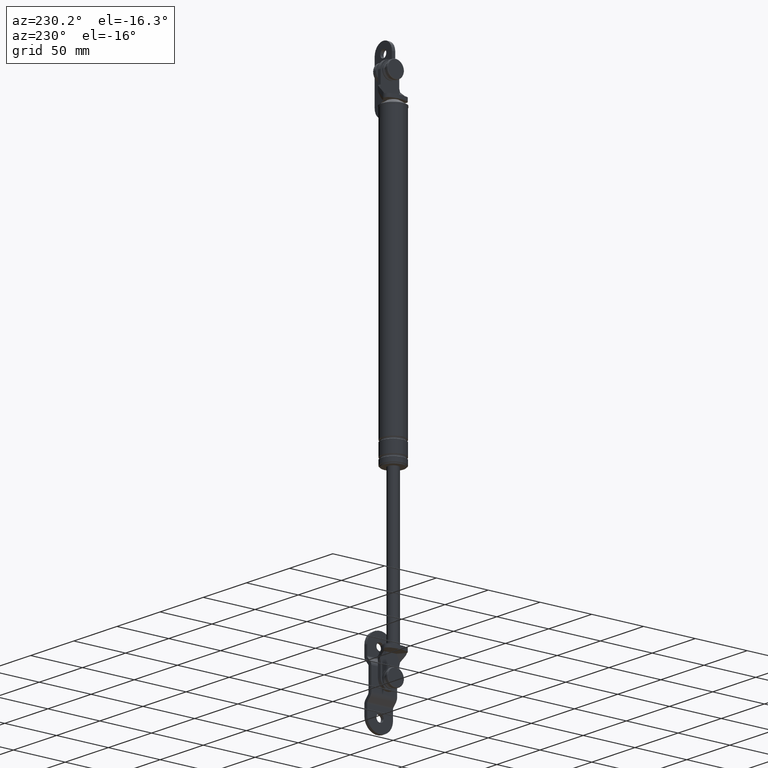
[diagram: clean part render]
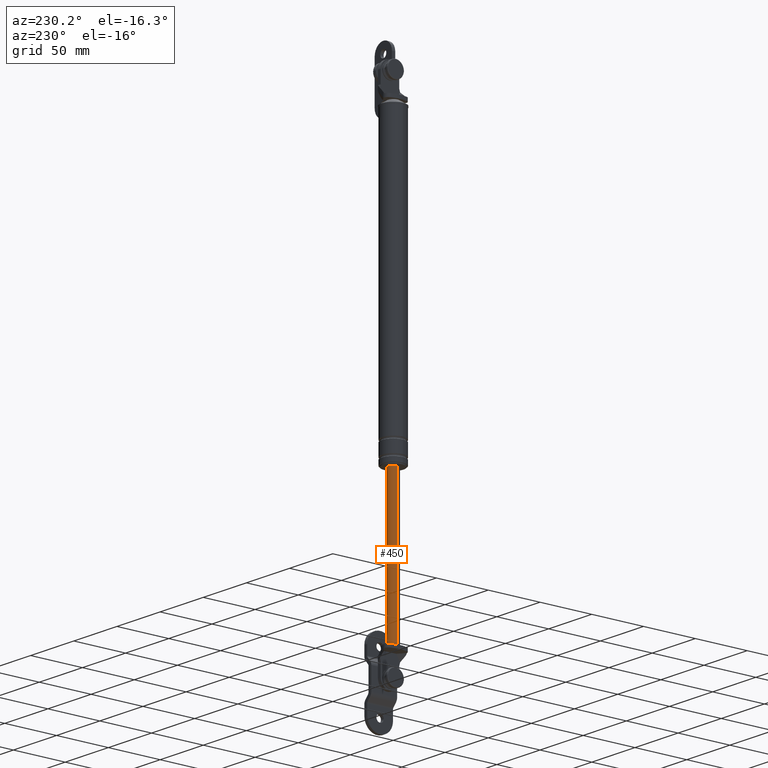
[diagram: same view with one face highlighted and labeled with its STEP entity id]
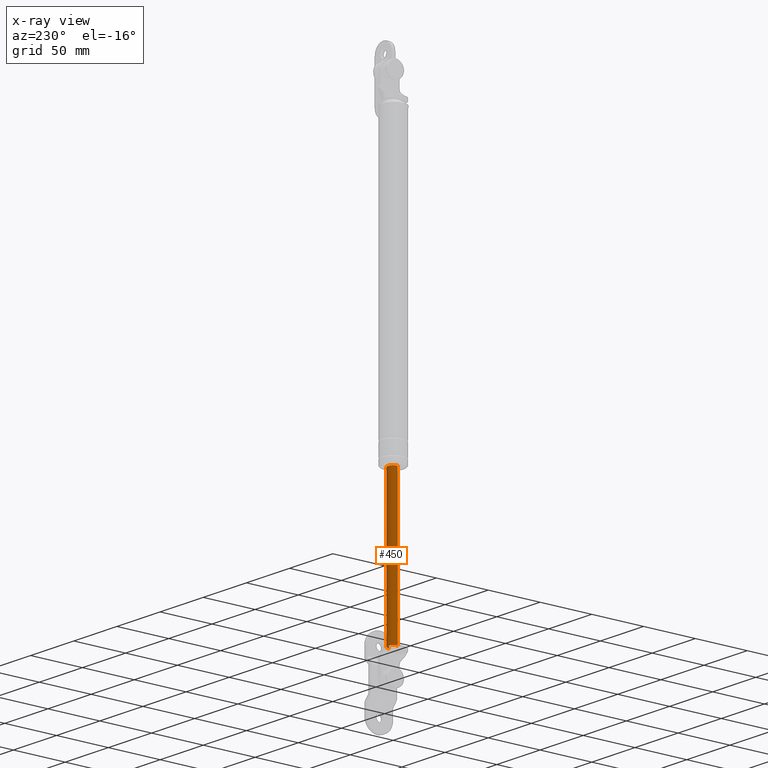
[diagram: x-ray of the same camera — body ghosted, the highlighted face saturated]
A machine part, auxiliary view. The second image highlights one B-rep face of the part: STEP entity #450.
The next image is the same camera in x-ray: the body ghosted, the highlighted face saturated — about 0% of this face is hidden behind the body in this view.
In plain terms, the highlighted cylindrical surface (edge-blend (fillet) strip) has radius 5 mm, axis along (0, 0, 1).
Its self-contained STEP definition (entity closure, byte-faithful):
#450=ADVANCED_FACE('',(#2196),#2195,.T.);
#2195=CYLINDRICAL_SURFACE('',#3422,5.00000002618E+000);
#2196=FACE_OUTER_BOUND('',#3423,.T.);
#3419=CARTESIAN_POINT('',(0.00000000000E+000,-2.61800128243E-008,0.00000000000E+000));
#3420=DIRECTION('',(-0.00000000000E+000,-0.00000000000E+000,1.00000000000E+000));
#3421=DIRECTION('',(-1.00000000000E+000,5.23598998637E-009,0.00000000000E+000));
#3422=AXIS2_PLACEMENT_3D('',#3419,#3420,#3421);
#3423=EDGE_LOOP('',(#4281,#4282,#4283,#4284,#4285));
#4281=ORIENTED_EDGE('',*,*,#4701,.F.);
#4282=ORIENTED_EDGE('',*,*,#4712,.F.);
#4283=ORIENTED_EDGE('',*,*,#4715,.T.);
#4284=ORIENTED_EDGE('',*,*,#4698,.F.);
#4285=ORIENTED_EDGE('',*,*,#4716,.F.);
#4698=EDGE_CURVE('',#7458,#7459,#7460,.T.);
#4701=EDGE_CURVE('',#7218,#7479,#7480,.T.);
#4712=EDGE_CURVE('',#7542,#7218,#7549,.T.);
#4715=EDGE_CURVE('',#7542,#7459,#7567,.T.);
#4716=EDGE_CURVE('',#7479,#7458,#7573,.T.);
#7218=VERTEX_POINT('',#9119);
#7458=VERTEX_POINT('',#9257);
#7459=VERTEX_POINT('',#9258);
#7460=CIRCLE('',#9262,5.00000002618E+000);
#7479=VERTEX_POINT('',#9271);
#7480=CIRCLE('',#9275,5.00000007854E+000);
#7542=VERTEX_POINT('',#9309);
#7549=CIRCLE('',#9317,5.00000007854E+000);
#7567=(BOUNDED_CURVE() B_SPLINE_CURVE(1,(#9322,#9323),.UNSPECIFIED.,.F.,.F.) B_SPLINE_CURVE_WITH_KNOTS((2,2),(6.28930816424E-002,9.37106918113E-001),.UNSPECIFIED.) CURVE() GEOMETRIC_REPRESENTATION_ITEM() RATIONAL_B_SPLINE_CURVE((1.00000000000E+000,1.00000000000E+000)) REPRESENTATION_ITEM('') );
#7573=(BOUNDED_CURVE() B_SPLINE_CURVE(1,(#9324,#9325),.UNSPECIFIED.,.F.,.F.) B_SPLINE_CURVE_WITH_KNOTS((2,2),(6.28930817610E-002,9.37106918239E-001),.UNSPECIFIED.) CURVE() GEOMETRIC_REPRESENTATION_ITEM() RATIONAL_B_SPLINE_CURVE((7.50000000000E-001,7.50000000000E-001)) REPRESENTATION_ITEM('') );
#9119=CARTESIAN_POINT('',(2.00000000000E+000,4.58257578065E+000,-3.33000015000E+002));
#9257=CARTESIAN_POINT('',(5.00000002618E+000,-2.61800128243E-008,-1.94000015000E+002));
#9258=CARTESIAN_POINT('',(-5.00000002618E+000,-6.12843109593E-014,-1.94000015000E+002));
#9259=CARTESIAN_POINT('',(0.00000000000E+000,-2.61800128243E-008,-1.94000015000E+002));
#9260=DIRECTION('',(0.00000000000E+000,0.00000000000E+000,1.00000000000E+000));
#9261=DIRECTION('',(1.00000000000E+000,-1.22460635382E-016,0.00000000000E+000));
#9262=AXIS2_PLACEMENT_3D('',#9259,#9260,#9261);
#9271=CARTESIAN_POINT('',(5.00000007854E+000,2.18807031133E-006,-3.33000015000E+002));
#9272=CARTESIAN_POINT('',(0.00000000000E+000,-5.96163199979E-014,-3.33000015000E+002));
#9273=DIRECTION('',(0.00000000000E+000,0.00000000000E+000,-1.00000000000E+000));
#9274=DIRECTION('',(3.99999993717E-001,9.16515141733E-001,0.00000000000E+000));
#9275=AXIS2_PLACEMENT_3D('',#9272,#9273,#9274);
#9309=CARTESIAN_POINT('',(-5.00000007854E+000,-1.92893489989E-008,-3.33000015000E+002));
#9314=CARTESIAN_POINT('',(0.00000000000E+000,-5.96163199979E-014,-3.33000015000E+002));
#9315=DIRECTION('',(0.00000000000E+000,0.00000000000E+000,-1.00000000000E+000));
#9316=DIRECTION('',(1.00000000000E+000,-0.00000000000E+000,-0.00000000000E+000));
#9317=AXIS2_PLACEMENT_3D('',#9314,#9315,#9316);
#9322=CARTESIAN_POINT('',(-5.00000002618E+000,-6.27553556001E-014,-3.33000015019E+002));
#9323=CARTESIAN_POINT('',(-5.00000002618E+000,-6.27553556001E-014,-1.94000015020E+002));
#9324=CARTESIAN_POINT('',(5.00000002618E+000,-5.23599628840E-008,-3.33000015000E+002));
#9325=CARTESIAN_POINT('',(5.00000002618E+000,-5.23599628840E-008,-1.94000015000E+002));